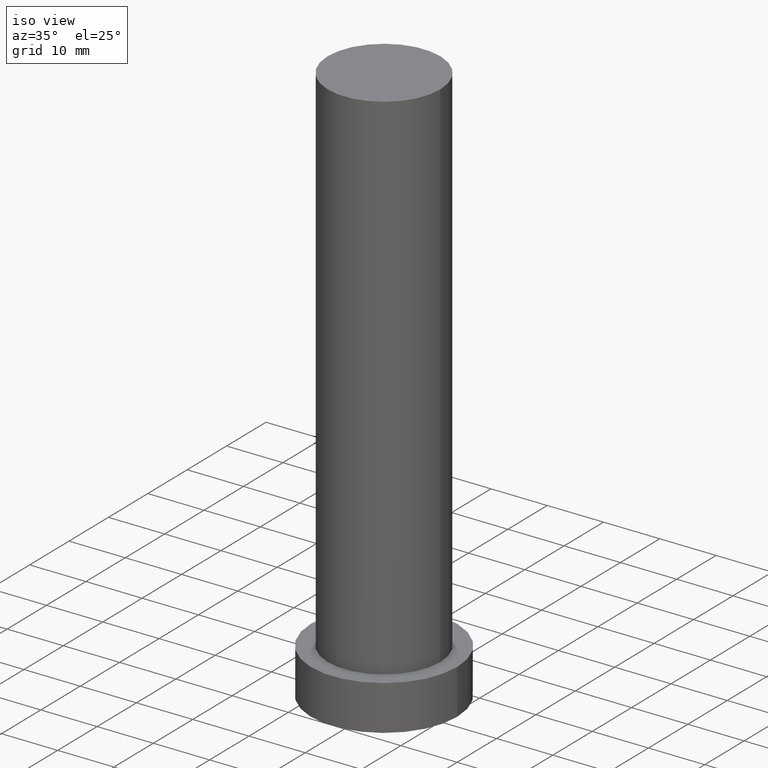
[diagram: clean part render]
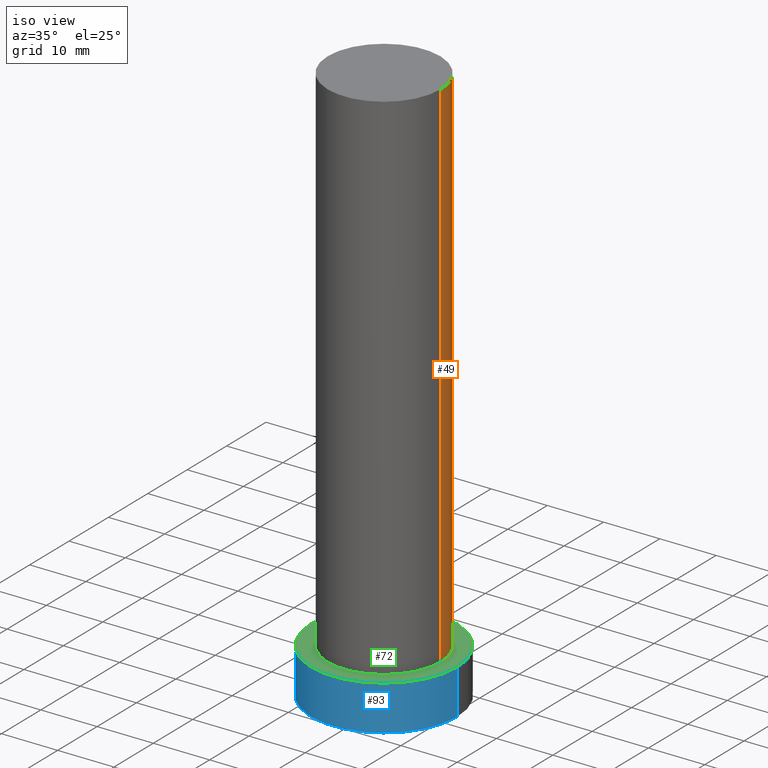
[diagram: same view with three faces highlighted in distinct colors, each labeled with its STEP entity id]
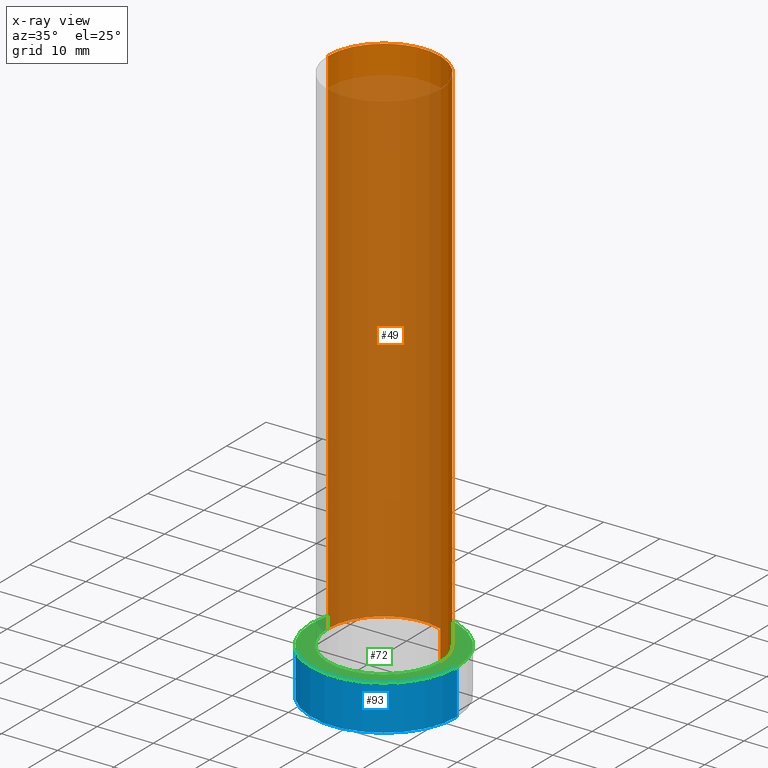
[diagram: x-ray of the same camera — body ghosted, the three highlighted faces saturated]
A machine part, iso view with three faces highlighted in distinct colors.
The next image is the same camera in x-ray (body ghosted, the three faces saturated) — at least one of them is partly hidden behind the body in this view.
Their STEP definitions:

[orange] entity #49 — the highlighted cylindrical surface (partial cylindrical patch) has radius 10 mm, axis along (-0, -0, -1).
#5 = LINE ( 'NONE', #215, #206 ) ;
#8 = ORIENTED_EDGE ( 'NONE', *, *, #45, .T. ) ;
#29 = AXIS2_PLACEMENT_3D ( 'NONE', #190, #223, #53 ) ;
#30 = DIRECTION ( 'NONE',  ( 0.000000000000000000, 0.000000000000000000, 1.000000000000000000 ) ) ;
#32 = CARTESIAN_POINT ( 'NONE',  ( 10.00000000000000178, 1.224646799147353454E-15, 100.0000000000000000 ) ) ;
#45 = EDGE_CURVE ( 'NONE', #111, #113, #5, .T. ) ;
#47 = ORIENTED_EDGE ( 'NONE', *, *, #55, .T. ) ;
#49 = ADVANCED_FACE ( 'NONE', ( #219 ), #63, .T. ) ;
#53 = DIRECTION ( 'NONE',  ( 1.000000000000000000, 0.000000000000000000, 0.000000000000000000 ) ) ;
#55 = EDGE_CURVE ( 'NONE', #113, #217, #183, .T. ) ;
#63 = CYLINDRICAL_SURFACE ( 'NONE', #192, 10.00000000000000178 ) ;
#65 = CARTESIAN_POINT ( 'NONE',  ( 0.000000000000000000, 0.000000000000000000, 100.0000000000000000 ) ) ;
#67 = DIRECTION ( 'NONE',  ( -0.000000000000000000, -0.000000000000000000, -1.000000000000000000 ) ) ;
#95 = EDGE_LOOP ( 'NONE', ( #225, #8, #47, #145 ) ) ;
#99 = DIRECTION ( 'NONE',  ( -0.000000000000000000, -0.000000000000000000, -1.000000000000000000 ) ) ;
#106 = AXIS2_PLACEMENT_3D ( 'NONE', #152, #30, #137 ) ;
#111 = VERTEX_POINT ( 'NONE', #32 ) ;
#113 = VERTEX_POINT ( 'NONE', #188 ) ;
#130 = DIRECTION ( 'NONE',  ( -0.000000000000000000, -0.000000000000000000, -1.000000000000000000 ) ) ;
#132 = VERTEX_POINT ( 'NONE', #208 ) ;
#135 = CARTESIAN_POINT ( 'NONE',  ( -10.00000000000000178, 0.000000000000000000, 8.000000000000000000 ) ) ;
#137 = DIRECTION ( 'NONE',  ( 1.000000000000000000, 0.000000000000000000, 0.000000000000000000 ) ) ;
#143 = CIRCLE ( 'NONE', #106, 10.00000000000000178 ) ;
#145 = ORIENTED_EDGE ( 'NONE', *, *, #159, .F. ) ;
#146 = DIRECTION ( 'NONE',  ( -1.000000000000000000, 0.000000000000000000, 0.000000000000000000 ) ) ;
#150 = VECTOR ( 'NONE', #99, 1000.000000000000000 ) ;
#152 = CARTESIAN_POINT ( 'NONE',  ( 0.000000000000000000, 0.000000000000000000, 100.0000000000000000 ) ) ;
#154 = EDGE_CURVE ( 'NONE', #111, #132, #143, .T. ) ;
#159 = EDGE_CURVE ( 'NONE', #132, #217, #167, .T. ) ;
#167 = LINE ( 'NONE', #250, #150 ) ;
#183 = CIRCLE ( 'NONE', #29, 10.00000000000000178 ) ;
#188 = CARTESIAN_POINT ( 'NONE',  ( 10.00000000000000178, 1.224646799147353454E-15, 8.000000000000000000 ) ) ;
#190 = CARTESIAN_POINT ( 'NONE',  ( 0.000000000000000000, 0.000000000000000000, 8.000000000000000000 ) ) ;
#192 = AXIS2_PLACEMENT_3D ( 'NONE', #65, #130, #146 ) ;
#206 = VECTOR ( 'NONE', #67, 1000.000000000000000 ) ;
#208 = CARTESIAN_POINT ( 'NONE',  ( -10.00000000000000178, 0.000000000000000000, 100.0000000000000000 ) ) ;
#215 = CARTESIAN_POINT ( 'NONE',  ( 10.00000000000000178, 1.224646799147353454E-15, 100.0000000000000000 ) ) ;
#217 = VERTEX_POINT ( 'NONE', #135 ) ;
#219 = FACE_OUTER_BOUND ( 'NONE', #95, .T. ) ;
#223 = DIRECTION ( 'NONE',  ( 0.000000000000000000, 0.000000000000000000, 1.000000000000000000 ) ) ;
#225 = ORIENTED_EDGE ( 'NONE', *, *, #154, .F. ) ;
#250 = CARTESIAN_POINT ( 'NONE',  ( -10.00000000000000178, 0.000000000000000000, 100.0000000000000000 ) ) ;

[blue] entity #93 — the highlighted cylindrical surface (partial cylindrical patch) has radius 13 mm, axis along (-0, -0, -1).
#7 = VERTEX_POINT ( 'NONE', #80 ) ;
#9 = EDGE_CURVE ( 'NONE', #61, #59, #233, .T. ) ;
#10 = LINE ( 'NONE', #98, #84 ) ;
#11 = EDGE_CURVE ( 'NONE', #88, #61, #86, .T. ) ;
#20 = CARTESIAN_POINT ( 'NONE',  ( 0.000000000000000000, 0.000000000000000000, 8.000000000000000000 ) ) ;
#40 = VECTOR ( 'NONE', #140, 1000.000000000000000 ) ;
#43 = ORIENTED_EDGE ( 'NONE', *, *, #11, .F. ) ;
#46 = CIRCLE ( 'NONE', #120, 13.00000000000000178 ) ;
#57 = DIRECTION ( 'NONE',  ( 1.000000000000000000, 0.000000000000000000, 0.000000000000000000 ) ) ;
#59 = VERTEX_POINT ( 'NONE', #170 ) ;
#61 = VERTEX_POINT ( 'NONE', #109 ) ;
#62 = CYLINDRICAL_SURFACE ( 'NONE', #175, 13.00000000000000178 ) ;
#71 = DIRECTION ( 'NONE',  ( 0.000000000000000000, 0.000000000000000000, 1.000000000000000000 ) ) ;
#80 = CARTESIAN_POINT ( 'NONE',  ( -13.00000000000000178, 0.000000000000000000, 0.000000000000000000 ) ) ;
#83 = CARTESIAN_POINT ( 'NONE',  ( 13.00000000000000178, 1.592040838891559293E-15, 8.000000000000000000 ) ) ;
#84 = VECTOR ( 'NONE', #90, 1000.000000000000000 ) ;
#86 = CIRCLE ( 'NONE', #165, 13.00000000000000178 ) ;
#88 = VERTEX_POINT ( 'NONE', #236 ) ;
#89 = EDGE_LOOP ( 'NONE', ( #246, #43, #189, #162 ) ) ;
#90 = DIRECTION ( 'NONE',  ( -0.000000000000000000, -0.000000000000000000, -1.000000000000000000 ) ) ;
#93 = ADVANCED_FACE ( 'NONE', ( #129 ), #62, .T. ) ;
#98 = CARTESIAN_POINT ( 'NONE',  ( -13.00000000000000178, 0.000000000000000000, 8.000000000000000000 ) ) ;
#109 = CARTESIAN_POINT ( 'NONE',  ( 13.00000000000000178, 1.592040838891559293E-15, 8.000000000000000000 ) ) ;
#114 = EDGE_CURVE ( 'NONE', #88, #7, #10, .T. ) ;
#117 = DIRECTION ( 'NONE',  ( -0.000000000000000000, -0.000000000000000000, -1.000000000000000000 ) ) ;
#120 = AXIS2_PLACEMENT_3D ( 'NONE', #226, #71, #164 ) ;
#124 = EDGE_CURVE ( 'NONE', #7, #59, #46, .T. ) ;
#129 = FACE_OUTER_BOUND ( 'NONE', #89, .T. ) ;
#140 = DIRECTION ( 'NONE',  ( -0.000000000000000000, -0.000000000000000000, -1.000000000000000000 ) ) ;
#162 = ORIENTED_EDGE ( 'NONE', *, *, #124, .T. ) ;
#164 = DIRECTION ( 'NONE',  ( 1.000000000000000000, 0.000000000000000000, 0.000000000000000000 ) ) ;
#165 = AXIS2_PLACEMENT_3D ( 'NONE', #20, #196, #57 ) ;
#170 = CARTESIAN_POINT ( 'NONE',  ( 13.00000000000000178, 1.592040838891559293E-15, 0.000000000000000000 ) ) ;
#175 = AXIS2_PLACEMENT_3D ( 'NONE', #214, #117, #245 ) ;
#189 = ORIENTED_EDGE ( 'NONE', *, *, #114, .T. ) ;
#196 = DIRECTION ( 'NONE',  ( 0.000000000000000000, 0.000000000000000000, 1.000000000000000000 ) ) ;
#214 = CARTESIAN_POINT ( 'NONE',  ( 0.000000000000000000, 0.000000000000000000, 8.000000000000000000 ) ) ;
#226 = CARTESIAN_POINT ( 'NONE',  ( 0.000000000000000000, 0.000000000000000000, 0.000000000000000000 ) ) ;
#233 = LINE ( 'NONE', #83, #40 ) ;
#236 = CARTESIAN_POINT ( 'NONE',  ( -13.00000000000000178, 0.000000000000000000, 8.000000000000000000 ) ) ;
#245 = DIRECTION ( 'NONE',  ( -1.000000000000000000, 0.000000000000000000, 0.000000000000000000 ) ) ;
#246 = ORIENTED_EDGE ( 'NONE', *, *, #9, .F. ) ;

[green] entity #72 — the highlighted planar face has unit normal (0, 0, 1).
#11 = EDGE_CURVE ( 'NONE', #88, #61, #86, .T. ) ;
#20 = CARTESIAN_POINT ( 'NONE',  ( 0.000000000000000000, 0.000000000000000000, 8.000000000000000000 ) ) ;
#23 = CIRCLE ( 'NONE', #171, 13.00000000000000178 ) ;
#25 = DIRECTION ( 'NONE',  ( 1.000000000000000000, 0.000000000000000000, 0.000000000000000000 ) ) ;
#26 = CARTESIAN_POINT ( 'NONE',  ( 0.000000000000000000, 0.000000000000000000, 8.000000000000000000 ) ) ;
#29 = AXIS2_PLACEMENT_3D ( 'NONE', #190, #223, #53 ) ;
#38 = FACE_BOUND ( 'NONE', #213, .T. ) ;
#53 = DIRECTION ( 'NONE',  ( 1.000000000000000000, 0.000000000000000000, 0.000000000000000000 ) ) ;
#55 = EDGE_CURVE ( 'NONE', #113, #217, #183, .T. ) ;
#57 = DIRECTION ( 'NONE',  ( 1.000000000000000000, 0.000000000000000000, 0.000000000000000000 ) ) ;
#60 = EDGE_CURVE ( 'NONE', #217, #113, #234, .T. ) ;
#61 = VERTEX_POINT ( 'NONE', #109 ) ;
#72 = ADVANCED_FACE ( 'NONE', ( #38, #123 ), #254, .T. ) ;
#79 = DIRECTION ( 'NONE',  ( 1.000000000000000000, 0.000000000000000000, -0.000000000000000000 ) ) ;
#82 = DIRECTION ( 'NONE',  ( 0.000000000000000000, 0.000000000000000000, 1.000000000000000000 ) ) ;
#86 = CIRCLE ( 'NONE', #165, 13.00000000000000178 ) ;
#88 = VERTEX_POINT ( 'NONE', #236 ) ;
#104 = EDGE_LOOP ( 'NONE', ( #244, #241 ) ) ;
#109 = CARTESIAN_POINT ( 'NONE',  ( 13.00000000000000178, 1.592040838891559293E-15, 8.000000000000000000 ) ) ;
#113 = VERTEX_POINT ( 'NONE', #188 ) ;
#115 = DIRECTION ( 'NONE',  ( 0.000000000000000000, 0.000000000000000000, 1.000000000000000000 ) ) ;
#123 = FACE_OUTER_BOUND ( 'NONE', #104, .T. ) ;
#127 = AXIS2_PLACEMENT_3D ( 'NONE', #178, #82, #79 ) ;
#133 = AXIS2_PLACEMENT_3D ( 'NONE', #26, #115, #248 ) ;
#135 = CARTESIAN_POINT ( 'NONE',  ( -10.00000000000000178, 0.000000000000000000, 8.000000000000000000 ) ) ;
#163 = ORIENTED_EDGE ( 'NONE', *, *, #55, .F. ) ;
#165 = AXIS2_PLACEMENT_3D ( 'NONE', #20, #196, #57 ) ;
#171 = AXIS2_PLACEMENT_3D ( 'NONE', #207, #205, #25 ) ;
#178 = CARTESIAN_POINT ( 'NONE',  ( 0.000000000000000000, 0.000000000000000000, 8.000000000000000000 ) ) ;
#183 = CIRCLE ( 'NONE', #29, 10.00000000000000178 ) ;
#188 = CARTESIAN_POINT ( 'NONE',  ( 10.00000000000000178, 1.224646799147353454E-15, 8.000000000000000000 ) ) ;
#190 = CARTESIAN_POINT ( 'NONE',  ( 0.000000000000000000, 0.000000000000000000, 8.000000000000000000 ) ) ;
#196 = DIRECTION ( 'NONE',  ( 0.000000000000000000, 0.000000000000000000, 1.000000000000000000 ) ) ;
#205 = DIRECTION ( 'NONE',  ( 0.000000000000000000, 0.000000000000000000, 1.000000000000000000 ) ) ;
#207 = CARTESIAN_POINT ( 'NONE',  ( 0.000000000000000000, 0.000000000000000000, 8.000000000000000000 ) ) ;
#213 = EDGE_LOOP ( 'NONE', ( #242, #163 ) ) ;
#217 = VERTEX_POINT ( 'NONE', #135 ) ;
#223 = DIRECTION ( 'NONE',  ( 0.000000000000000000, 0.000000000000000000, 1.000000000000000000 ) ) ;
#234 = CIRCLE ( 'NONE', #133, 10.00000000000000178 ) ;
#236 = CARTESIAN_POINT ( 'NONE',  ( -13.00000000000000178, 0.000000000000000000, 8.000000000000000000 ) ) ;
#239 = EDGE_CURVE ( 'NONE', #61, #88, #23, .T. ) ;
#241 = ORIENTED_EDGE ( 'NONE', *, *, #239, .T. ) ;
#242 = ORIENTED_EDGE ( 'NONE', *, *, #60, .F. ) ;
#244 = ORIENTED_EDGE ( 'NONE', *, *, #11, .T. ) ;
#248 = DIRECTION ( 'NONE',  ( 1.000000000000000000, 0.000000000000000000, 0.000000000000000000 ) ) ;
#254 = PLANE ( 'NONE',  #127 ) ;